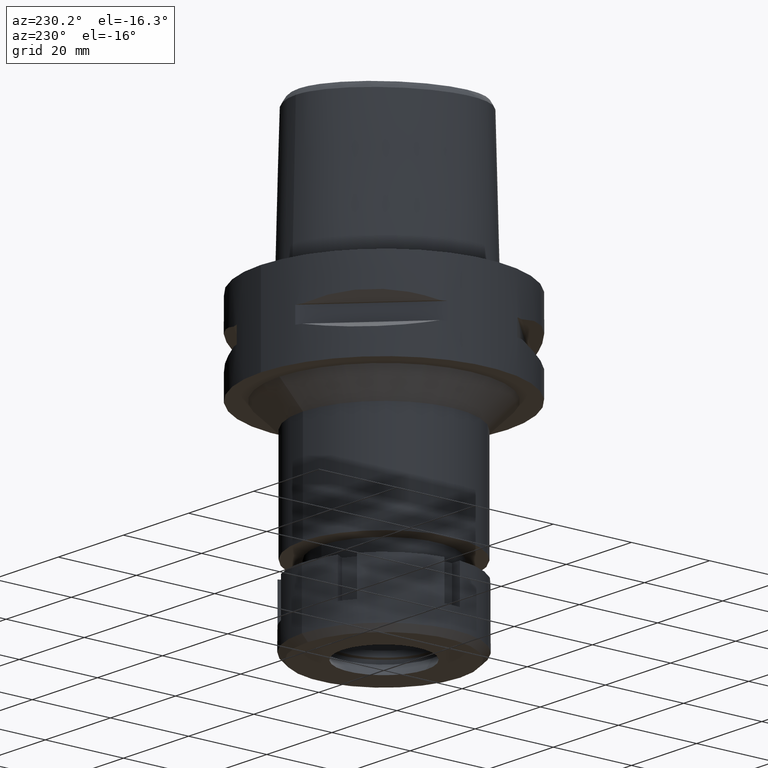
[diagram: clean part render]
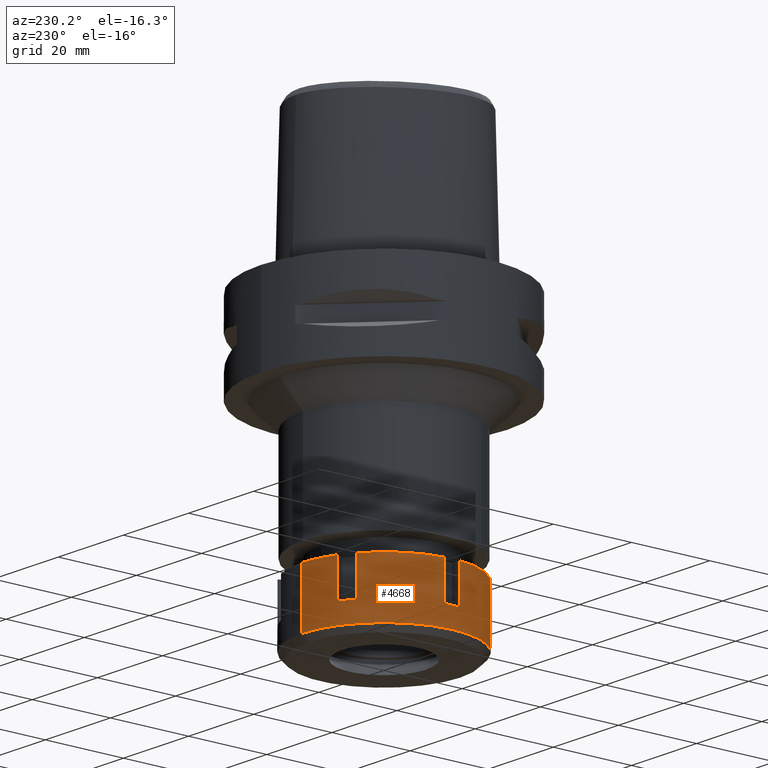
[diagram: same view with one face highlighted and labeled with its STEP entity id]
A machine part, auxiliary view. The second image highlights one B-rep face of the part: STEP entity #4668.
In plain terms, the highlighted cylindrical surface (partial cylindrical patch) has radius 21 mm, axis along (0, 0, -1).
Its self-contained STEP definition (entity closure, byte-faithful):
#19 = ORIENTED_EDGE ( 'NONE', *, *, #1048, .T. ) ;
#50 = CARTESIAN_POINT ( 'NONE',  ( 0.0000000000000000000, 0.0000000000000000000, 0.0000000000000000000 ) ) ;
#65 = CARTESIAN_POINT ( 'NONE',  ( -8.720221672615000585, -19.10386699022999935, -9.500000000000000000 ) ) ;
#127 = CARTESIAN_POINT ( 'NONE',  ( -20.90454496036999998, 2.000000000000000000, -9.500000000000000000 ) ) ;
#155 = EDGE_CURVE ( 'NONE', #5036, #5209, #2215, .T. ) ;
#161 = VERTEX_POINT ( 'NONE', #3868 ) ;
#188 = VECTOR ( 'NONE', #849, 1000.000000000000000 ) ;
#213 = VERTEX_POINT ( 'NONE', #3014 ) ;
#232 = CARTESIAN_POINT ( 'NONE',  ( -20.90454496036999998, -2.000000000000000000, 0.0000000000000000000 ) ) ;
#311 = EDGE_CURVE ( 'NONE', #3932, #3300, #4071, .T. ) ;
#323 = VECTOR ( 'NONE', #4660, 1000.000000000000000 ) ;
#329 = CARTESIAN_POINT ( 'NONE',  ( 0.0000000000000000000, -21.00000000000000000, 0.0000000000000000000 ) ) ;
#375 = CIRCLE ( 'NONE', #3121, 21.00000000000000711 ) ;
#395 = ORIENTED_EDGE ( 'NONE', *, *, #3197, .T. ) ;
#427 = DIRECTION ( 'NONE',  ( 0.0000000000000000000, 0.0000000000000000000, -1.000000000000000000 ) ) ;
#477 = DIRECTION ( 'NONE',  ( 0.0000000000000000000, 0.0000000000000000000, 1.000000000000000000 ) ) ;
#553 = EDGE_CURVE ( 'NONE', #592, #5209, #1154, .T. ) ;
#591 = DIRECTION ( 'NONE',  ( -0.9954545219222313834, -0.09523809523810303213, 0.0000000000000000000 ) ) ;
#592 = VERTEX_POINT ( 'NONE', #1760 ) ;
#599 = VERTEX_POINT ( 'NONE', #4330 ) ;
#644 = ORIENTED_EDGE ( 'NONE', *, *, #311, .T. ) ;
#692 = DIRECTION ( 'NONE',  ( 0.0000000000000000000, 0.0000000000000000000, -1.000000000000000000 ) ) ;
#705 = ORIENTED_EDGE ( 'NONE', *, *, #2132, .F. ) ;
#739 = FACE_OUTER_BOUND ( 'NONE', #1207, .T. ) ;
#769 = CIRCLE ( 'NONE', #3694, 20.99999999999999289 ) ;
#797 = DIRECTION ( 'NONE',  ( 0.0000000000000000000, 0.0000000000000000000, -1.000000000000000000 ) ) ;
#823 = DIRECTION ( 'NONE',  ( 0.0000000000000000000, 0.0000000000000000000, -1.000000000000000000 ) ) ;
#849 = DIRECTION ( 'NONE',  ( 0.0000000000000000000, 0.0000000000000000000, 1.000000000000000000 ) ) ;
#982 = DIRECTION ( 'NONE',  ( 0.0000000000000000000, -1.000000000000000000, 0.0000000000000000000 ) ) ;
#1035 = DIRECTION ( 'NONE',  ( 0.0000000000000000000, 0.0000000000000000000, -1.000000000000000000 ) ) ;
#1048 = EDGE_CURVE ( 'NONE', #2157, #1274, #4770, .T. ) ;
#1151 = CARTESIAN_POINT ( 'NONE',  ( -12.18432328774999895, -17.10386699022999935, 0.0000000000000000000 ) ) ;
#1154 = LINE ( 'NONE', #329, #5028 ) ;
#1207 = EDGE_LOOP ( 'NONE', ( #705, #644, #1796, #3057, #5131, #1414, #5010, #19, #2955, #2392, #5440, #395, #4291, #1891, #1586, #3564 ) ) ;
#1220 = CARTESIAN_POINT ( 'NONE',  ( -20.90454496036999998, 2.000000000000000000, 0.0000000000000000000 ) ) ;
#1225 = CARTESIAN_POINT ( 'NONE',  ( 0.0000000000000000000, 0.0000000000000000000, 0.0000000000000000000 ) ) ;
#1240 = CARTESIAN_POINT ( 'NONE',  ( 0.0000000000000000000, 21.00000000000000000, 0.0000000000000000000 ) ) ;
#1246 = AXIS2_PLACEMENT_3D ( 'NONE', #4241, #3796, #1539 ) ;
#1274 = VERTEX_POINT ( 'NONE', #4713 ) ;
#1356 = DIRECTION ( 'NONE',  ( -0.5802058708454290725, -0.8144698566776411575, 0.0000000000000000000 ) ) ;
#1408 = CARTESIAN_POINT ( 'NONE',  ( 0.0000000000000000000, -21.00000000000000000, -14.50000000000000000 ) ) ;
#1414 = ORIENTED_EDGE ( 'NONE', *, *, #1642, .T. ) ;
#1445 = CARTESIAN_POINT ( 'NONE',  ( 0.0000000000000000000, 21.00000000000000000, -14.50000000000000000 ) ) ;
#1456 = CARTESIAN_POINT ( 'NONE',  ( -8.720221672615000585, 19.10386699022999935, 0.0000000000000000000 ) ) ;
#1524 = CIRCLE ( 'NONE', #2139, 21.00000000000000000 ) ;
#1536 = VERTEX_POINT ( 'NONE', #2908 ) ;
#1539 = DIRECTION ( 'NONE',  ( -0.4152486510768949035, -0.9097079519157886818, 0.0000000000000000000 ) ) ;
#1586 = ORIENTED_EDGE ( 'NONE', *, *, #4768, .F. ) ;
#1634 = EDGE_CURVE ( 'NONE', #2157, #1536, #3893, .T. ) ;
#1638 = DIRECTION ( 'NONE',  ( 0.0000000000000000000, 0.0000000000000000000, -1.000000000000000000 ) ) ;
#1642 = EDGE_CURVE ( 'NONE', #592, #1536, #1524, .T. ) ;
#1760 = CARTESIAN_POINT ( 'NONE',  ( 0.0000000000000000000, -21.00000000000000000, 0.0000000000000000000 ) ) ;
#1777 = CARTESIAN_POINT ( 'NONE',  ( -12.18432328774999895, 17.10386699022999935, -9.500000000000000000 ) ) ;
#1796 = ORIENTED_EDGE ( 'NONE', *, *, #3773, .T. ) ;
#1879 = CARTESIAN_POINT ( 'NONE',  ( 0.0000000000000000000, 0.0000000000000000000, -9.500000000000000000 ) ) ;
#1891 = ORIENTED_EDGE ( 'NONE', *, *, #5188, .T. ) ;
#1920 = CARTESIAN_POINT ( 'NONE',  ( 0.0000000000000000000, 21.00000000000000000, 0.0000000000000000000 ) ) ;
#2028 = EDGE_CURVE ( 'NONE', #161, #213, #375, .T. ) ;
#2064 = CARTESIAN_POINT ( 'NONE',  ( -20.90454496036999998, -2.000000000000000000, -9.500000000000000000 ) ) ;
#2132 = EDGE_CURVE ( 'NONE', #3932, #213, #4438, .T. ) ;
#2139 = AXIS2_PLACEMENT_3D ( 'NONE', #4756, #2340, #982 ) ;
#2157 = VERTEX_POINT ( 'NONE', #4408 ) ;
#2185 = CARTESIAN_POINT ( 'NONE',  ( 0.0000000000000000000, 0.0000000000000000000, 0.0000000000000000000 ) ) ;
#2215 = CIRCLE ( 'NONE', #4419, 21.00000000000000000 ) ;
#2216 = EDGE_CURVE ( 'NONE', #599, #2967, #3805, .T. ) ;
#2246 = DIRECTION ( 'NONE',  ( 0.0000000000000000000, 0.0000000000000000000, -1.000000000000000000 ) ) ;
#2340 = DIRECTION ( 'NONE',  ( 0.0000000000000000000, 0.0000000000000000000, -1.000000000000000000 ) ) ;
#2392 = ORIENTED_EDGE ( 'NONE', *, *, #2753, .T. ) ;
#2577 = VERTEX_POINT ( 'NONE', #1220 ) ;
#2613 = AXIS2_PLACEMENT_3D ( 'NONE', #1225, #427, #2921 ) ;
#2691 = CARTESIAN_POINT ( 'NONE',  ( 0.0000000000000000000, 0.0000000000000000000, -9.500000000000000000 ) ) ;
#2753 = EDGE_CURVE ( 'NONE', #4742, #2967, #2917, .T. ) ;
#2791 = DIRECTION ( 'NONE',  ( -0.5802058708453158298, 0.8144698566777217597, 0.0000000000000000000 ) ) ;
#2846 = DIRECTION ( 'NONE',  ( 0.0000000000000000000, 0.0000000000000000000, -1.000000000000000000 ) ) ;
#2908 = CARTESIAN_POINT ( 'NONE',  ( -8.720221672615998898, -19.10386699022999935, 0.0000000000000000000 ) ) ;
#2917 = CIRCLE ( 'NONE', #3368, 20.99999999999999645 ) ;
#2921 = DIRECTION ( 'NONE',  ( 0.0000000000000000000, -1.000000000000000000, 0.0000000000000000000 ) ) ;
#2953 = DIRECTION ( 'NONE',  ( 0.0000000000000000000, 0.0000000000000000000, 1.000000000000000000 ) ) ;
#2955 = ORIENTED_EDGE ( 'NONE', *, *, #4021, .F. ) ;
#2967 = VERTEX_POINT ( 'NONE', #232 ) ;
#3014 = CARTESIAN_POINT ( 'NONE',  ( -8.720221672615000585, 19.10386699022999935, -9.500000000000000000 ) ) ;
#3032 = VECTOR ( 'NONE', #1035, 1000.000000000000000 ) ;
#3057 = ORIENTED_EDGE ( 'NONE', *, *, #155, .T. ) ;
#3082 = DIRECTION ( 'NONE',  ( -0.9954545219222313834, 0.09523809523810303213, 0.0000000000000000000 ) ) ;
#3103 = CARTESIAN_POINT ( 'NONE',  ( 0.0000000000000000000, 0.0000000000000000000, -14.50000000000000000 ) ) ;
#3121 = AXIS2_PLACEMENT_3D ( 'NONE', #1879, #692, #2791 ) ;
#3197 = EDGE_CURVE ( 'NONE', #599, #5117, #769, .T. ) ;
#3217 = VECTOR ( 'NONE', #2953, 1000.000000000000000 ) ;
#3249 = VECTOR ( 'NONE', #477, 1000.000000000000000 ) ;
#3300 = VERTEX_POINT ( 'NONE', #1920 ) ;
#3368 = AXIS2_PLACEMENT_3D ( 'NONE', #50, #2246, #1356 ) ;
#3440 = DIRECTION ( 'NONE',  ( 0.0000000000000000000, 1.000000000000000000, 0.0000000000000000000 ) ) ;
#3491 = DIRECTION ( 'NONE',  ( 0.0000000000000000000, 0.0000000000000000000, 1.000000000000000000 ) ) ;
#3544 = DIRECTION ( 'NONE',  ( 0.0000000000000000000, 0.0000000000000000000, -1.000000000000000000 ) ) ;
#3564 = ORIENTED_EDGE ( 'NONE', *, *, #2028, .T. ) ;
#3621 = VERTEX_POINT ( 'NONE', #3793 ) ;
#3689 = LINE ( 'NONE', #4586, #4894 ) ;
#3694 = AXIS2_PLACEMENT_3D ( 'NONE', #2691, #3913, #591 ) ;
#3773 = EDGE_CURVE ( 'NONE', #3300, #5036, #5096, .T. ) ;
#3793 = CARTESIAN_POINT ( 'NONE',  ( -12.18432328774999895, 17.10386699022999935, 0.0000000000000000000 ) ) ;
#3796 = DIRECTION ( 'NONE',  ( 0.0000000000000000000, 0.0000000000000000000, -1.000000000000000000 ) ) ;
#3805 = LINE ( 'NONE', #2064, #3217 ) ;
#3868 = CARTESIAN_POINT ( 'NONE',  ( -12.18432328774999895, 17.10386699022999935, -9.500000000000000000 ) ) ;
#3893 = LINE ( 'NONE', #65, #188 ) ;
#3913 = DIRECTION ( 'NONE',  ( 0.0000000000000000000, 0.0000000000000000000, -1.000000000000000000 ) ) ;
#3932 = VERTEX_POINT ( 'NONE', #4581 ) ;
#3948 = CARTESIAN_POINT ( 'NONE',  ( 0.0000000000000000000, 0.0000000000000000000, 0.0000000000000000000 ) ) ;
#4021 = EDGE_CURVE ( 'NONE', #4742, #1274, #4927, .T. ) ;
#4071 = CIRCLE ( 'NONE', #4760, 21.00000000000000711 ) ;
#4133 = VECTOR ( 'NONE', #2846, 1000.000000000000000 ) ;
#4241 = CARTESIAN_POINT ( 'NONE',  ( 0.0000000000000000000, 0.0000000000000000000, -9.500000000000000000 ) ) ;
#4291 = ORIENTED_EDGE ( 'NONE', *, *, #5369, .F. ) ;
#4330 = CARTESIAN_POINT ( 'NONE',  ( -20.90454496036999998, -2.000000000000000000, -9.500000000000000000 ) ) ;
#4365 = DIRECTION ( 'NONE',  ( -0.4152486510768949035, 0.9097079519157886818, 0.0000000000000000000 ) ) ;
#4408 = CARTESIAN_POINT ( 'NONE',  ( -8.720221672615998898, -19.10386699022999935, -9.500000000000000000 ) ) ;
#4419 = AXIS2_PLACEMENT_3D ( 'NONE', #3103, #3491, #3440 ) ;
#4438 = LINE ( 'NONE', #1456, #3032 ) ;
#4460 = CIRCLE ( 'NONE', #5151, 20.99999999999999289 ) ;
#4581 = CARTESIAN_POINT ( 'NONE',  ( -8.720221672615000585, 19.10386699022999935, 0.0000000000000000000 ) ) ;
#4586 = CARTESIAN_POINT ( 'NONE',  ( -20.90454496036999998, 2.000000000000000000, 0.0000000000000000000 ) ) ;
#4595 = CARTESIAN_POINT ( 'NONE',  ( -12.18432328774999895, -17.10386699022999935, 0.0000000000000000000 ) ) ;
#4660 = DIRECTION ( 'NONE',  ( 0.0000000000000000000, 0.0000000000000000000, -1.000000000000000000 ) ) ;
#4668 = ADVANCED_FACE ( 'NONE', ( #739 ), #5435, .T. ) ;
#4713 = CARTESIAN_POINT ( 'NONE',  ( -12.18432328774999895, -17.10386699022999935, -9.500000000000000000 ) ) ;
#4742 = VERTEX_POINT ( 'NONE', #4595 ) ;
#4756 = CARTESIAN_POINT ( 'NONE',  ( 0.0000000000000000000, 0.0000000000000000000, 0.0000000000000000000 ) ) ;
#4760 = AXIS2_PLACEMENT_3D ( 'NONE', #3948, #3544, #4365 ) ;
#4768 = EDGE_CURVE ( 'NONE', #161, #3621, #5085, .T. ) ;
#4770 = CIRCLE ( 'NONE', #1246, 21.00000000000000711 ) ;
#4894 = VECTOR ( 'NONE', #823, 1000.000000000000000 ) ;
#4927 = LINE ( 'NONE', #1151, #4133 ) ;
#5010 = ORIENTED_EDGE ( 'NONE', *, *, #1634, .F. ) ;
#5028 = VECTOR ( 'NONE', #797, 1000.000000000000000 ) ;
#5036 = VERTEX_POINT ( 'NONE', #1445 ) ;
#5085 = LINE ( 'NONE', #1777, #3249 ) ;
#5096 = LINE ( 'NONE', #1240, #323 ) ;
#5117 = VERTEX_POINT ( 'NONE', #127 ) ;
#5131 = ORIENTED_EDGE ( 'NONE', *, *, #553, .F. ) ;
#5151 = AXIS2_PLACEMENT_3D ( 'NONE', #2185, #1638, #3082 ) ;
#5188 = EDGE_CURVE ( 'NONE', #2577, #3621, #4460, .T. ) ;
#5209 = VERTEX_POINT ( 'NONE', #1408 ) ;
#5369 = EDGE_CURVE ( 'NONE', #2577, #5117, #3689, .T. ) ;
#5435 = CYLINDRICAL_SURFACE ( 'NONE', #2613, 21.00000000000000000 ) ;
#5440 = ORIENTED_EDGE ( 'NONE', *, *, #2216, .F. ) ;